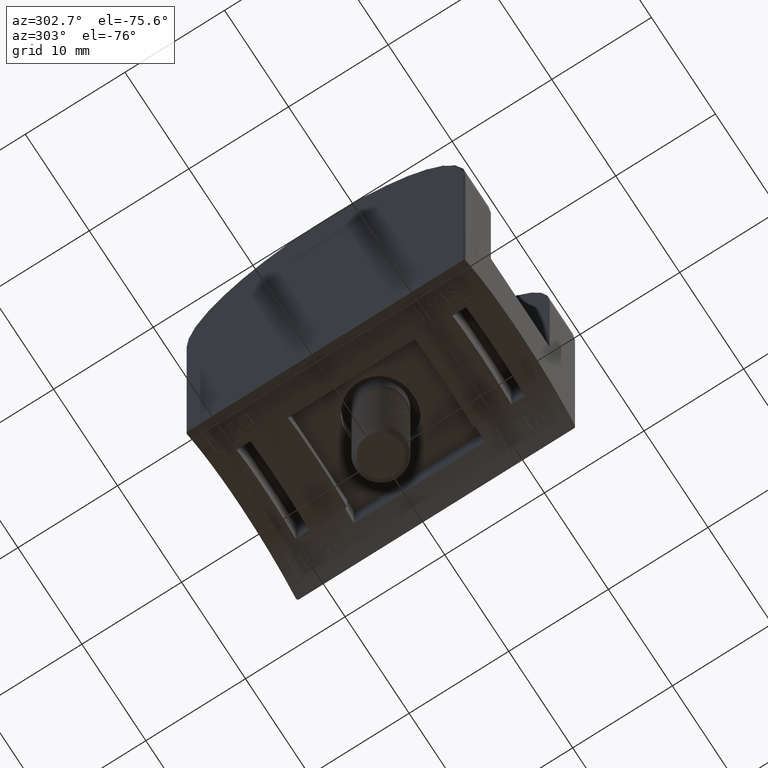
[diagram: clean part render]
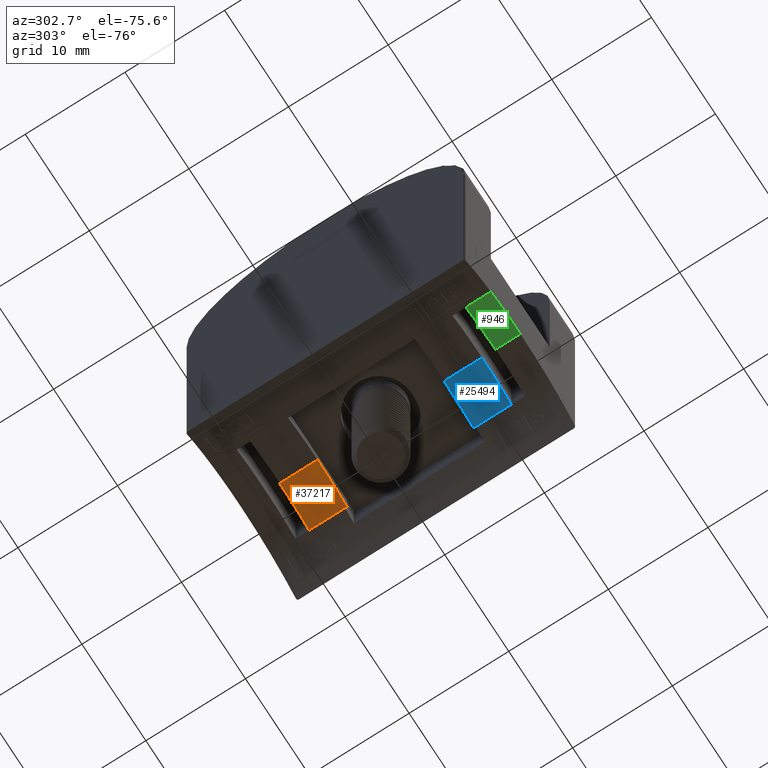
[diagram: same view with three faces highlighted in distinct colors, each labeled with its STEP entity id]
A machine part, auxiliary view with three faces highlighted in distinct colors.
Their STEP definitions:

[orange] entity #37217 — the highlighted cylindrical surface (partial cylindrical patch) has radius 13.45 mm, axis along (0, 1, 0).
#2745 = CARTESIAN_POINT ( 'NONE',  ( 13.29999999999999900, -13.99999999999999500, -0.8110720391324346400 ) ) ;
#3497 = CARTESIAN_POINT ( 'NONE',  ( 8.699999999999997500, 10.14999999999999900, -13.44999999999999900 ) ) ;
#3947 = CARTESIAN_POINT ( 'NONE',  ( 8.699999999999997500, -13.99999999999999500, -1.734723475976807100E-015 ) ) ;
#4957 = VECTOR ( 'NONE', #8500, 1000.000000000000000 ) ;
#5474 = DIRECTION ( 'NONE',  ( -0.0000000000000000000, 1.000000000000000000, 2.538619720941671800E-015 ) ) ;
#6873 = EDGE_CURVE ( 'NONE', #46000, #22731, #16514, .T. ) ;
#7310 = CARTESIAN_POINT ( 'NONE',  ( 8.699999999999997500, 10.14999999999999900, -1.734723475976807100E-015 ) ) ;
#8500 = DIRECTION ( 'NONE',  ( -0.0000000000000000000, 1.000000000000000000, -0.0000000000000000000 ) ) ;
#10848 = DIRECTION ( 'NONE',  ( 0.0000000000000000000, 0.0000000000000000000, 1.000000000000000000 ) ) ;
#11582 = DIRECTION ( 'NONE',  ( 0.0000000000000000000, -1.000000000000000000, 0.0000000000000000000 ) ) ;
#16514 = CIRCLE ( 'NONE', #31424, 13.44999999999999900 ) ;
#16911 = CIRCLE ( 'NONE', #33214, 13.44999999999999900 ) ;
#19715 = CARTESIAN_POINT ( 'NONE',  ( 8.699999999999997500, -13.99999999999999500, -13.44999999999999900 ) ) ;
#20190 = CARTESIAN_POINT ( 'NONE',  ( 13.29999999999999900, 10.14999999999999900, -0.8110720391324346400 ) ) ;
#20384 = FACE_OUTER_BOUND ( 'NONE', #28364, .T. ) ;
#21827 = CYLINDRICAL_SURFACE ( 'NONE', #57136, 13.44999999999999900 ) ;
#22731 = VERTEX_POINT ( 'NONE', #7310 ) ;
#22971 = CARTESIAN_POINT ( 'NONE',  ( 8.699999999999997500, 6.350000000000009400, -1.734723475976807100E-015 ) ) ;
#26172 = DIRECTION ( 'NONE',  ( 0.0000000000000000000, 0.0000000000000000000, -1.000000000000000000 ) ) ;
#27215 = VERTEX_POINT ( 'NONE', #22971 ) ;
#28364 = EDGE_LOOP ( 'NONE', ( #31683, #30555, #48867, #32540 ) ) ;
#30555 = ORIENTED_EDGE ( 'NONE', *, *, #38211, .T. ) ;
#31424 = AXIS2_PLACEMENT_3D ( 'NONE', #3497, #49092, #26172 ) ;
#31683 = ORIENTED_EDGE ( 'NONE', *, *, #49586, .F. ) ;
#32540 = ORIENTED_EDGE ( 'NONE', *, *, #33382, .T. ) ;
#33001 = LINE ( 'NONE', #2745, #52821 ) ;
#33214 = AXIS2_PLACEMENT_3D ( 'NONE', #56041, #5474, #42139 ) ;
#33382 = EDGE_CURVE ( 'NONE', #46000, #42260, #33001, .T. ) ;
#37217 = ADVANCED_FACE ( 'NONE', ( #20384 ), #21827, .F. ) ;
#38211 = EDGE_CURVE ( 'NONE', #27215, #22731, #56541, .T. ) ;
#42139 = DIRECTION ( 'NONE',  ( 0.0000000000000000000, -2.515026600858568200E-015, 1.000000000000000000 ) ) ;
#42260 = VERTEX_POINT ( 'NONE', #46145 ) ;
#46000 = VERTEX_POINT ( 'NONE', #20190 ) ;
#46145 = CARTESIAN_POINT ( 'NONE',  ( 13.29999999999999900, 6.350000000000011200, -0.8110720391324346400 ) ) ;
#47346 = DIRECTION ( 'NONE',  ( -0.0000000000000000000, 1.000000000000000000, -0.0000000000000000000 ) ) ;
#48867 = ORIENTED_EDGE ( 'NONE', *, *, #6873, .F. ) ;
#49092 = DIRECTION ( 'NONE',  ( 0.0000000000000000000, -1.000000000000000000, 0.0000000000000000000 ) ) ;
#49586 = EDGE_CURVE ( 'NONE', #27215, #42260, #16911, .T. ) ;
#52821 = VECTOR ( 'NONE', #11582, 1000.000000000000000 ) ;
#56041 = CARTESIAN_POINT ( 'NONE',  ( 8.699999999999997500, 6.350000000000043200, -13.44999999999999900 ) ) ;
#56541 = LINE ( 'NONE', #3947, #4957 ) ;
#57136 = AXIS2_PLACEMENT_3D ( 'NONE', #19715, #47346, #10848 ) ;

[blue] entity #25494 — the highlighted cylindrical surface (partial cylindrical patch) has radius 13.45 mm, axis along (0, 1, 0).
#1302 = CARTESIAN_POINT ( 'NONE',  ( 13.29999999999999900, -13.99999999999999500, -0.8110720391324346400 ) ) ;
#4118 = DIRECTION ( 'NONE',  ( 0.0000000000000000000, -1.000000000000000000, 0.0000000000000000000 ) ) ;
#5798 = AXIS2_PLACEMENT_3D ( 'NONE', #39964, #58005, #17084 ) ;
#10164 = ORIENTED_EDGE ( 'NONE', *, *, #14824, .T. ) ;
#12854 = EDGE_CURVE ( 'NONE', #54598, #14373, #23883, .T. ) ;
#13003 = DIRECTION ( 'NONE',  ( 0.0000000000000000000, 0.0000000000000000000, -1.000000000000000000 ) ) ;
#14373 = VERTEX_POINT ( 'NONE', #50573 ) ;
#14824 = EDGE_CURVE ( 'NONE', #54598, #45911, #31635, .T. ) ;
#17081 = LINE ( 'NONE', #1302, #55269 ) ;
#17084 = DIRECTION ( 'NONE',  ( 0.0000000000000000000, 0.0000000000000000000, 1.000000000000000000 ) ) ;
#17242 = DIRECTION ( 'NONE',  ( -0.0000000000000000000, 1.000000000000000000, -0.0000000000000000000 ) ) ;
#18586 = AXIS2_PLACEMENT_3D ( 'NONE', #36594, #17242, #41293 ) ;
#23568 = CARTESIAN_POINT ( 'NONE',  ( 8.699999999999997500, -6.350000000000006800, -1.734723475976807100E-015 ) ) ;
#23883 = CIRCLE ( 'NONE', #5798, 13.44999999999999900 ) ;
#25494 = ADVANCED_FACE ( 'NONE', ( #56030 ), #31995, .F. ) ;
#26967 = ORIENTED_EDGE ( 'NONE', *, *, #37324, .F. ) ;
#27971 = VERTEX_POINT ( 'NONE', #48854 ) ;
#29653 = CARTESIAN_POINT ( 'NONE',  ( 8.699999999999997500, -13.99999999999999500, -1.734723475976807100E-015 ) ) ;
#30180 = EDGE_LOOP ( 'NONE', ( #55848, #10164, #26967, #57949 ) ) ;
#31635 = LINE ( 'NONE', #29653, #56342 ) ;
#31816 = EDGE_CURVE ( 'NONE', #27971, #14373, #17081, .T. ) ;
#31995 = CYLINDRICAL_SURFACE ( 'NONE', #18586, 13.44999999999999900 ) ;
#34194 = DIRECTION ( 'NONE',  ( -0.0000000000000000000, 1.000000000000000000, -0.0000000000000000000 ) ) ;
#34772 = AXIS2_PLACEMENT_3D ( 'NONE', #40208, #4118, #13003 ) ;
#35016 = CARTESIAN_POINT ( 'NONE',  ( 8.699999999999997500, -10.14999999999999900, -1.734723475976807100E-015 ) ) ;
#36594 = CARTESIAN_POINT ( 'NONE',  ( 8.699999999999997500, -13.99999999999999500, -13.44999999999999900 ) ) ;
#37324 = EDGE_CURVE ( 'NONE', #27971, #45911, #52988, .T. ) ;
#39964 = CARTESIAN_POINT ( 'NONE',  ( 8.699999999999997500, -10.14999999999999900, -13.44999999999999900 ) ) ;
#40208 = CARTESIAN_POINT ( 'NONE',  ( 8.699999999999997500, -6.350000000000006800, -13.44999999999999900 ) ) ;
#41293 = DIRECTION ( 'NONE',  ( 0.0000000000000000000, 0.0000000000000000000, 1.000000000000000000 ) ) ;
#43074 = DIRECTION ( 'NONE',  ( 0.0000000000000000000, -1.000000000000000000, 0.0000000000000000000 ) ) ;
#45911 = VERTEX_POINT ( 'NONE', #23568 ) ;
#48854 = CARTESIAN_POINT ( 'NONE',  ( 13.29999999999999900, -6.350000000000006800, -0.8110720391324346400 ) ) ;
#50573 = CARTESIAN_POINT ( 'NONE',  ( 13.29999999999999900, -10.14999999999999900, -0.8110720391324346400 ) ) ;
#52988 = CIRCLE ( 'NONE', #34772, 13.44999999999999900 ) ;
#54598 = VERTEX_POINT ( 'NONE', #35016 ) ;
#55269 = VECTOR ( 'NONE', #43074, 1000.000000000000000 ) ;
#55848 = ORIENTED_EDGE ( 'NONE', *, *, #12854, .F. ) ;
#56030 = FACE_OUTER_BOUND ( 'NONE', #30180, .T. ) ;
#56342 = VECTOR ( 'NONE', #34194, 1000.000000000000000 ) ;
#57949 = ORIENTED_EDGE ( 'NONE', *, *, #31816, .T. ) ;
#58005 = DIRECTION ( 'NONE',  ( -0.0000000000000000000, 1.000000000000000000, 0.0000000000000000000 ) ) ;

[green] entity #946 — the highlighted cylindrical surface (partial cylindrical patch) has radius 13.45 mm, axis along (0, -1, -0).
#797 = EDGE_LOOP ( 'NONE', ( #21248, #11944, #46736, #37880 ) ) ;
#946 = ADVANCED_FACE ( 'NONE', ( #3474 ), #45834, .F. ) ;
#1757 = AXIS2_PLACEMENT_3D ( 'NONE', #11822, #38640, #11625 ) ;
#3474 = FACE_OUTER_BOUND ( 'NONE', #797, .T. ) ;
#3501 = VERTEX_POINT ( 'NONE', #38706 ) ;
#4248 = DIRECTION ( 'NONE',  ( 0.0000000000000000000, 0.0000000000000000000, 1.000000000000000000 ) ) ;
#4943 = AXIS2_PLACEMENT_3D ( 'NONE', #8220, #8621, #4248 ) ;
#5328 = VECTOR ( 'NONE', #44295, 1000.000000000000000 ) ;
#8220 = CARTESIAN_POINT ( 'NONE',  ( 8.699999999999999300, 11.49999999999999600, -13.44999999999999900 ) ) ;
#8290 = EDGE_CURVE ( 'NONE', #27189, #15562, #45435, .T. ) ;
#8621 = DIRECTION ( 'NONE',  ( -0.0000000000000000000, 1.000000000000000000, 0.0000000000000000000 ) ) ;
#11625 = DIRECTION ( 'NONE',  ( 0.0000000000000000000, 0.0000000000000000000, 1.000000000000000000 ) ) ;
#11822 = CARTESIAN_POINT ( 'NONE',  ( 8.699999999999999300, -13.99999999999999800, -13.44999999999999900 ) ) ;
#11944 = ORIENTED_EDGE ( 'NONE', *, *, #14271, .T. ) ;
#14271 = EDGE_CURVE ( 'NONE', #27189, #47650, #51444, .T. ) ;
#14702 = DIRECTION ( 'NONE',  ( 0.0000000000000000000, -1.000000000000000000, -6.672013369141565500E-017 ) ) ;
#15075 = DIRECTION ( 'NONE',  ( 0.0000000000000000000, 1.289757231209522100E-016, -1.000000000000000000 ) ) ;
#15562 = VERTEX_POINT ( 'NONE', #35696 ) ;
#21248 = ORIENTED_EDGE ( 'NONE', *, *, #8290, .F. ) ;
#22733 = AXIS2_PLACEMENT_3D ( 'NONE', #42099, #14702, #15075 ) ;
#24762 = EDGE_CURVE ( 'NONE', #3501, #47650, #30587, .T. ) ;
#27189 = VERTEX_POINT ( 'NONE', #40930 ) ;
#29189 = DIRECTION ( 'NONE',  ( -0.0000000000000000000, 1.000000000000000000, -0.0000000000000000000 ) ) ;
#29324 = LINE ( 'NONE', #40321, #5328 ) ;
#30587 = CIRCLE ( 'NONE', #22733, 13.44999999999999900 ) ;
#31267 = CARTESIAN_POINT ( 'NONE',  ( 8.699999999999999300, 13.99999999999999300, 0.0000000000000000000 ) ) ;
#35163 = VECTOR ( 'NONE', #29189, 1000.000000000000000 ) ;
#35696 = CARTESIAN_POINT ( 'NONE',  ( 13.29999999999999900, 11.49999999999999600, -0.8110720391324346400 ) ) ;
#37880 = ORIENTED_EDGE ( 'NONE', *, *, #54712, .T. ) ;
#38640 = DIRECTION ( 'NONE',  ( -0.0000000000000000000, 1.000000000000000000, -0.0000000000000000000 ) ) ;
#38706 = CARTESIAN_POINT ( 'NONE',  ( 13.29999999999999700, 13.99999999999999500, -0.8110720391324346400 ) ) ;
#40321 = CARTESIAN_POINT ( 'NONE',  ( 13.29999999999999900, -13.99999999999999800, -0.8110720391324346400 ) ) ;
#40930 = CARTESIAN_POINT ( 'NONE',  ( 8.699999999999999300, 11.49999999999999600, 0.0000000000000000000 ) ) ;
#42099 = CARTESIAN_POINT ( 'NONE',  ( 8.699999999999999300, 13.99999999999999500, -13.44999999999999900 ) ) ;
#44295 = DIRECTION ( 'NONE',  ( 0.0000000000000000000, -1.000000000000000000, 0.0000000000000000000 ) ) ;
#45435 = CIRCLE ( 'NONE', #4943, 13.44999999999999900 ) ;
#45834 = CYLINDRICAL_SURFACE ( 'NONE', #1757, 13.44999999999999900 ) ;
#46736 = ORIENTED_EDGE ( 'NONE', *, *, #24762, .F. ) ;
#47650 = VERTEX_POINT ( 'NONE', #31267 ) ;
#51444 = LINE ( 'NONE', #54171, #35163 ) ;
#54171 = CARTESIAN_POINT ( 'NONE',  ( 8.699999999999999300, -13.99999999999999800, 0.0000000000000000000 ) ) ;
#54712 = EDGE_CURVE ( 'NONE', #3501, #15562, #29324, .T. ) ;